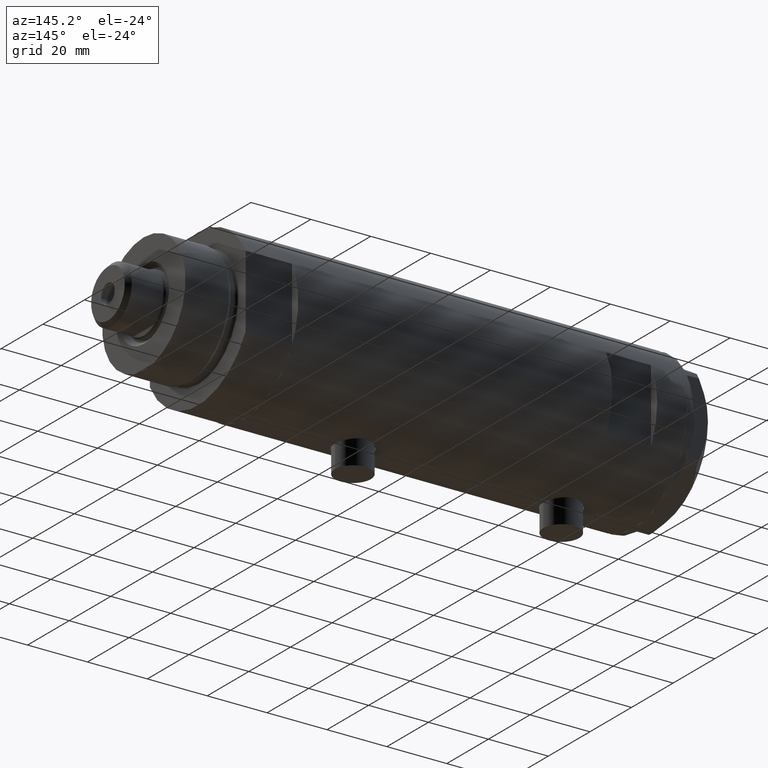
[diagram: clean part render]
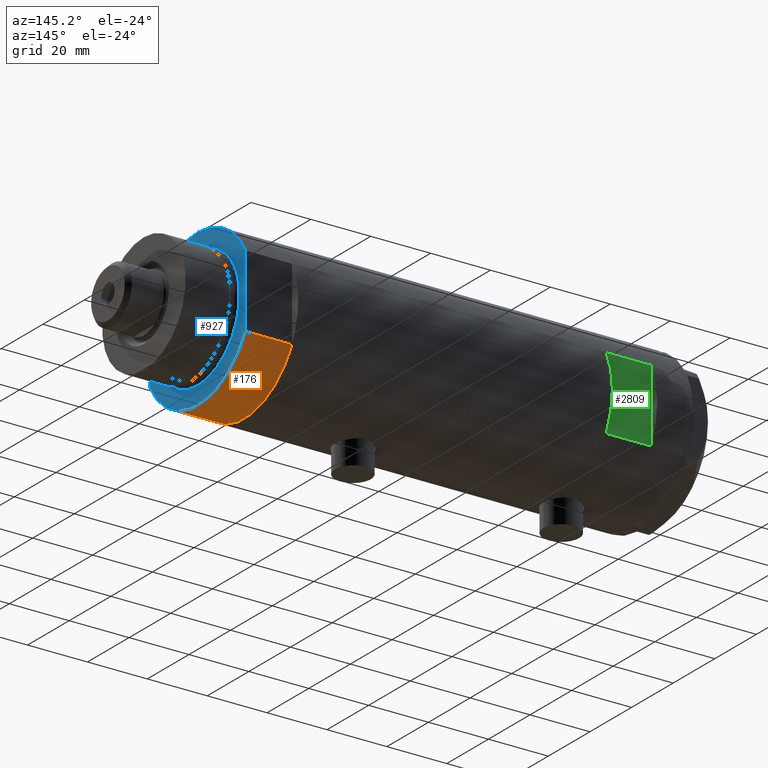
[diagram: same view with three faces highlighted in distinct colors, each labeled with its STEP entity id]
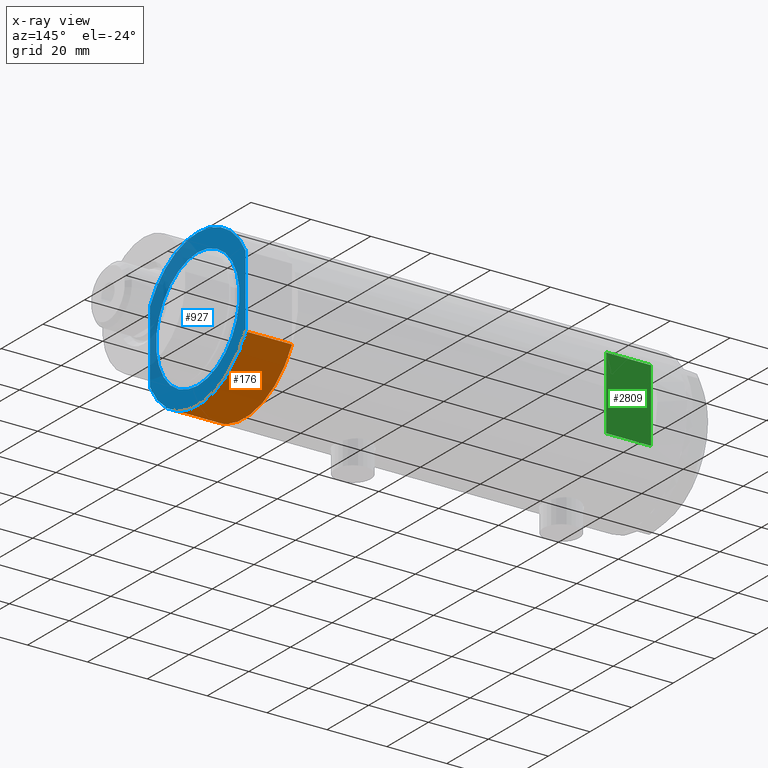
[diagram: x-ray of the same camera — body ghosted, the three highlighted faces saturated]
A machine part, auxiliary view with three faces highlighted in distinct colors.
The next image is the same camera in x-ray (body ghosted, the three faces saturated) — at least one of them is partly hidden behind the body in this view.
Their STEP definitions:

[orange] entity #176 — the highlighted cylindrical surface (partial cylindrical patch) has radius 26 mm, axis along (-1, -0, 0).
#138 = LINE ( 'NONE', #1623, #3081 ) ;
#148 = EDGE_CURVE ( 'NONE', #1057, #4669, #138, .T. ) ;
#162 = DIRECTION ( 'NONE',  ( -0.000000000000000000, -0.000000000000000000, 1.000000000000000000 ) ) ;
#173 = AXIS2_PLACEMENT_3D ( 'NONE', #3785, #3352, #4520 ) ;
#176 = ADVANCED_FACE ( 'NONE', ( #4280 ), #1649, .T. ) ;
#387 = DIRECTION ( 'NONE',  ( -0.000000000000000000, -0.000000000000000000, 1.000000000000000000 ) ) ;
#776 = ORIENTED_EDGE ( 'NONE', *, *, #148, .F. ) ;
#932 = DIRECTION ( 'NONE',  ( -1.000000000000000000, 0.000000000000000000, 0.000000000000000000 ) ) ;
#1053 = EDGE_CURVE ( 'NONE', #1057, #3826, #1677, .T. ) ;
#1057 = VERTEX_POINT ( 'NONE', #1385 ) ;
#1385 = CARTESIAN_POINT ( 'NONE',  ( 12.12435565298215323, -22.99999999999999645, 0.000000000000000000 ) ) ;
#1470 = EDGE_LOOP ( 'NONE', ( #2739, #776, #4200, #2169 ) ) ;
#1623 = CARTESIAN_POINT ( 'NONE',  ( 12.12435565298215323, -22.99999999999999645, 0.000000000000000000 ) ) ;
#1649 = CYLINDRICAL_SURFACE ( 'NONE', #3625, 26.00000000000000355 ) ;
#1677 = CIRCLE ( 'NONE', #4340, 26.00000000000000355 ) ;
#1723 = DIRECTION ( 'NONE',  ( 1.000000000000000000, 0.000000000000000000, 0.000000000000000000 ) ) ;
#2122 = DIRECTION ( 'NONE',  ( 0.000000000000000000, 0.000000000000000000, 1.000000000000000000 ) ) ;
#2131 = CARTESIAN_POINT ( 'NONE',  ( 12.12435565298215323, -22.99999999999999645, 15.50000000000000000 ) ) ;
#2132 = CIRCLE ( 'NONE', #173, 26.00000000000000355 ) ;
#2169 = ORIENTED_EDGE ( 'NONE', *, *, #2994, .T. ) ;
#2724 = CARTESIAN_POINT ( 'NONE',  ( 12.12435565298215323, 23.00000000000000355, 0.000000000000000000 ) ) ;
#2739 = ORIENTED_EDGE ( 'NONE', *, *, #3751, .F. ) ;
#2750 = VECTOR ( 'NONE', #387, 1000.000000000000000 ) ;
#2994 = EDGE_CURVE ( 'NONE', #3826, #4277, #2998, .T. ) ;
#2998 = LINE ( 'NONE', #2724, #2750 ) ;
#3081 = VECTOR ( 'NONE', #162, 1000.000000000000000 ) ;
#3153 = CARTESIAN_POINT ( 'NONE',  ( 0.000000000000000000, 0.000000000000000000, 15.50000000000000000 ) ) ;
#3186 = CARTESIAN_POINT ( 'NONE',  ( 12.12435565298214790, 23.00000000000000355, 15.50000000000000000 ) ) ;
#3198 = CARTESIAN_POINT ( 'NONE',  ( 0.000000000000000000, 0.000000000000000000, 0.000000000000000000 ) ) ;
#3352 = DIRECTION ( 'NONE',  ( 0.000000000000000000, 0.000000000000000000, 1.000000000000000000 ) ) ;
#3416 = CARTESIAN_POINT ( 'NONE',  ( 12.12435565298214080, 23.00000000000000355, 0.000000000000000000 ) ) ;
#3625 = AXIS2_PLACEMENT_3D ( 'NONE', #3153, #4648, #932 ) ;
#3751 = EDGE_CURVE ( 'NONE', #4669, #4277, #2132, .T. ) ;
#3785 = CARTESIAN_POINT ( 'NONE',  ( 0.000000000000000000, 0.000000000000000000, 15.50000000000000000 ) ) ;
#3826 = VERTEX_POINT ( 'NONE', #3416 ) ;
#4200 = ORIENTED_EDGE ( 'NONE', *, *, #1053, .T. ) ;
#4277 = VERTEX_POINT ( 'NONE', #3186 ) ;
#4280 = FACE_OUTER_BOUND ( 'NONE', #1470, .T. ) ;
#4340 = AXIS2_PLACEMENT_3D ( 'NONE', #3198, #2122, #1723 ) ;
#4520 = DIRECTION ( 'NONE',  ( 1.000000000000000000, 0.000000000000000000, 0.000000000000000000 ) ) ;
#4648 = DIRECTION ( 'NONE',  ( -0.000000000000000000, -0.000000000000000000, -1.000000000000000000 ) ) ;
#4669 = VERTEX_POINT ( 'NONE', #2131 ) ;

[blue] entity #927 — the highlighted planar face has unit normal (1, 0, -0).
#56 = CARTESIAN_POINT ( 'NONE',  ( 0.000000000000000000, 0.000000000000000000, 15.50000000000000000 ) ) ;
#125 = DIRECTION ( 'NONE',  ( 0.000000000000000000, 0.000000000000000000, 1.000000000000000000 ) ) ;
#173 = AXIS2_PLACEMENT_3D ( 'NONE', #3785, #3352, #4520 ) ;
#311 = ORIENTED_EDGE ( 'NONE', *, *, #4662, .T. ) ;
#327 = CARTESIAN_POINT ( 'NONE',  ( -12.12435565298215145, -22.99999999999999645, 15.50000000000000000 ) ) ;
#383 = EDGE_CURVE ( 'NONE', #1545, #4185, #3557, .T. ) ;
#580 = LINE ( 'NONE', #327, #2919 ) ;
#590 = CARTESIAN_POINT ( 'NONE',  ( 0.000000000000000000, 0.000000000000000000, 15.50000000000000000 ) ) ;
#651 = CIRCLE ( 'NONE', #3450, 26.00000000000000355 ) ;
#738 = CARTESIAN_POINT ( 'NONE',  ( 20.00000000000000000, 0.000000000000000000, 15.50000000000000000 ) ) ;
#783 = DIRECTION ( 'NONE',  ( 1.000000000000000000, 0.000000000000000000, 0.000000000000000000 ) ) ;
#839 = CARTESIAN_POINT ( 'NONE',  ( -12.12435565298215323, -22.99999999999999645, 15.50000000000000000 ) ) ;
#867 = FACE_OUTER_BOUND ( 'NONE', #4434, .T. ) ;
#918 = DIRECTION ( 'NONE',  ( -0.000000000000000000, -0.000000000000000000, -1.000000000000000000 ) ) ;
#927 = ADVANCED_FACE ( 'NONE', ( #3069, #867 ), #3850, .T. ) ;
#1023 = DIRECTION ( 'NONE',  ( 1.000000000000000000, 0.000000000000000000, 0.000000000000000000 ) ) ;
#1097 = VERTEX_POINT ( 'NONE', #4033 ) ;
#1111 = CIRCLE ( 'NONE', #2681, 26.00000000000000355 ) ;
#1134 = AXIS2_PLACEMENT_3D ( 'NONE', #2728, #125, #4608 ) ;
#1340 = DIRECTION ( 'NONE',  ( 0.000000000000000000, 0.000000000000000000, 1.000000000000000000 ) ) ;
#1368 = DIRECTION ( 'NONE',  ( 1.000000000000000000, 0.000000000000000000, 0.000000000000000000 ) ) ;
#1452 = DIRECTION ( 'NONE',  ( -1.000000000000000000, -0.000000000000000000, -0.000000000000000000 ) ) ;
#1454 = ORIENTED_EDGE ( 'NONE', *, *, #4208, .F. ) ;
#1545 = VERTEX_POINT ( 'NONE', #738 ) ;
#1670 = AXIS2_PLACEMENT_3D ( 'NONE', #56, #4477, #783 ) ;
#1814 = VECTOR ( 'NONE', #1368, 1000.000000000000000 ) ;
#1898 = AXIS2_PLACEMENT_3D ( 'NONE', #3986, #918, #3204 ) ;
#2131 = CARTESIAN_POINT ( 'NONE',  ( 12.12435565298215323, -22.99999999999999645, 15.50000000000000000 ) ) ;
#2132 = CIRCLE ( 'NONE', #173, 26.00000000000000355 ) ;
#2409 = VERTEX_POINT ( 'NONE', #2496 ) ;
#2449 = EDGE_CURVE ( 'NONE', #1097, #2409, #651, .T. ) ;
#2496 = CARTESIAN_POINT ( 'NONE',  ( -26.00000000000000355, 0.000000000000000000, 15.50000000000000000 ) ) ;
#2681 = AXIS2_PLACEMENT_3D ( 'NONE', #4751, #4376, #1023 ) ;
#2728 = CARTESIAN_POINT ( 'NONE',  ( 0.000000000000000000, 0.000000000000000000, 15.50000000000000000 ) ) ;
#2872 = ORIENTED_EDGE ( 'NONE', *, *, #3712, .T. ) ;
#2919 = VECTOR ( 'NONE', #1452, 1000.000000000000000 ) ;
#3056 = VERTEX_POINT ( 'NONE', #839 ) ;
#3069 = FACE_BOUND ( 'NONE', #4685, .T. ) ;
#3186 = CARTESIAN_POINT ( 'NONE',  ( 12.12435565298214790, 23.00000000000000355, 15.50000000000000000 ) ) ;
#3204 = DIRECTION ( 'NONE',  ( 1.000000000000000000, 0.000000000000000000, 0.000000000000000000 ) ) ;
#3352 = DIRECTION ( 'NONE',  ( 0.000000000000000000, 0.000000000000000000, 1.000000000000000000 ) ) ;
#3450 = AXIS2_PLACEMENT_3D ( 'NONE', #590, #1340, #4330 ) ;
#3513 = ORIENTED_EDGE ( 'NONE', *, *, #383, .T. ) ;
#3550 = ORIENTED_EDGE ( 'NONE', *, *, #3559, .F. ) ;
#3557 = CIRCLE ( 'NONE', #1670, 20.00000000000000000 ) ;
#3559 = EDGE_CURVE ( 'NONE', #1097, #4277, #4199, .T. ) ;
#3712 = EDGE_CURVE ( 'NONE', #2409, #3056, #1111, .T. ) ;
#3751 = EDGE_CURVE ( 'NONE', #4669, #4277, #2132, .T. ) ;
#3785 = CARTESIAN_POINT ( 'NONE',  ( 0.000000000000000000, 0.000000000000000000, 15.50000000000000000 ) ) ;
#3850 = PLANE ( 'NONE',  #1134 ) ;
#3986 = CARTESIAN_POINT ( 'NONE',  ( 0.000000000000000000, 0.000000000000000000, 15.50000000000000000 ) ) ;
#4017 = ORIENTED_EDGE ( 'NONE', *, *, #2449, .T. ) ;
#4029 = CARTESIAN_POINT ( 'NONE',  ( -20.00000000000000000, 2.449293598294706513E-15, 15.50000000000000000 ) ) ;
#4033 = CARTESIAN_POINT ( 'NONE',  ( -12.12435565298214613, 23.00000000000000355, 15.50000000000000000 ) ) ;
#4037 = CARTESIAN_POINT ( 'NONE',  ( -12.12435565298215145, 23.00000000000000355, 15.50000000000000000 ) ) ;
#4185 = VERTEX_POINT ( 'NONE', #4029 ) ;
#4199 = LINE ( 'NONE', #4037, #1814 ) ;
#4208 = EDGE_CURVE ( 'NONE', #4669, #3056, #580, .T. ) ;
#4277 = VERTEX_POINT ( 'NONE', #3186 ) ;
#4330 = DIRECTION ( 'NONE',  ( 1.000000000000000000, 0.000000000000000000, 0.000000000000000000 ) ) ;
#4356 = ORIENTED_EDGE ( 'NONE', *, *, #3751, .T. ) ;
#4376 = DIRECTION ( 'NONE',  ( 0.000000000000000000, 0.000000000000000000, 1.000000000000000000 ) ) ;
#4434 = EDGE_LOOP ( 'NONE', ( #1454, #4356, #3550, #4017, #2872 ) ) ;
#4477 = DIRECTION ( 'NONE',  ( -0.000000000000000000, -0.000000000000000000, -1.000000000000000000 ) ) ;
#4520 = DIRECTION ( 'NONE',  ( 1.000000000000000000, 0.000000000000000000, 0.000000000000000000 ) ) ;
#4608 = DIRECTION ( 'NONE',  ( 1.000000000000000000, 0.000000000000000000, -0.000000000000000000 ) ) ;
#4662 = EDGE_CURVE ( 'NONE', #4185, #1545, #4712, .T. ) ;
#4669 = VERTEX_POINT ( 'NONE', #2131 ) ;
#4685 = EDGE_LOOP ( 'NONE', ( #3513, #311 ) ) ;
#4712 = CIRCLE ( 'NONE', #1898, 20.00000000000000000 ) ;
#4751 = CARTESIAN_POINT ( 'NONE',  ( 0.000000000000000000, 0.000000000000000000, 15.50000000000000000 ) ) ;

[green] entity #2809 — the highlighted planar face has unit normal (0, -1, -0).
#562 = EDGE_CURVE ( 'NONE', #4598, #3832, #2804, .T. ) ;
#623 = DIRECTION ( 'NONE',  ( 1.000000000000000000, -0.000000000000000000, -0.000000000000000000 ) ) ;
#727 = PLANE ( 'NONE',  #797 ) ;
#735 = VECTOR ( 'NONE', #2156, 1000.000000000000000 ) ;
#797 = AXIS2_PLACEMENT_3D ( 'NONE', #2236, #4786, #4814 ) ;
#1038 = ORIENTED_EDGE ( 'NONE', *, *, #562, .T. ) ;
#1055 = CARTESIAN_POINT ( 'NONE',  ( 12.12435565298213724, 23.00000000000000355, 39.95000000000000284 ) ) ;
#1323 = CARTESIAN_POINT ( 'NONE',  ( -12.12435565298214080, 23.00000000000000355, 39.95000000000000284 ) ) ;
#1441 = CARTESIAN_POINT ( 'NONE',  ( -26.00000000000000355, 23.00000000000000355, 39.95000000000000284 ) ) ;
#1537 = ORIENTED_EDGE ( 'NONE', *, *, #2331, .T. ) ;
#1636 = CARTESIAN_POINT ( 'NONE',  ( -26.00000000000000355, 23.00000000000000355, 54.94999999999999574 ) ) ;
#1784 = LINE ( 'NONE', #1441, #4806 ) ;
#1996 = ORIENTED_EDGE ( 'NONE', *, *, #4761, .F. ) ;
#2156 = DIRECTION ( 'NONE',  ( -0.000000000000000000, -0.000000000000000000, -1.000000000000000000 ) ) ;
#2236 = CARTESIAN_POINT ( 'NONE',  ( -26.00000000000000355, 23.00000000000000355, 54.94999999999999574 ) ) ;
#2268 = CARTESIAN_POINT ( 'NONE',  ( -12.12435565298214080, 23.00000000000000355, 54.94999999999999574 ) ) ;
#2303 = VECTOR ( 'NONE', #3147, 1000.000000000000000 ) ;
#2331 = EDGE_CURVE ( 'NONE', #4364, #3644, #4803, .T. ) ;
#2545 = ORIENTED_EDGE ( 'NONE', *, *, #2670, .T. ) ;
#2604 = VECTOR ( 'NONE', #623, 1000.000000000000000 ) ;
#2612 = FACE_OUTER_BOUND ( 'NONE', #2763, .T. ) ;
#2670 = EDGE_CURVE ( 'NONE', #3832, #4364, #3512, .T. ) ;
#2763 = EDGE_LOOP ( 'NONE', ( #1537, #1996, #1038, #2545 ) ) ;
#2804 = LINE ( 'NONE', #4293, #2303 ) ;
#2809 = ADVANCED_FACE ( 'NONE', ( #2612 ), #727, .F. ) ;
#2921 = CARTESIAN_POINT ( 'NONE',  ( 12.12435565298214080, 23.00000000000000355, 54.94999999999999574 ) ) ;
#3147 = DIRECTION ( 'NONE',  ( 0.000000000000000000, 0.000000000000000000, 1.000000000000000000 ) ) ;
#3512 = LINE ( 'NONE', #1636, #2604 ) ;
#3644 = VERTEX_POINT ( 'NONE', #1055 ) ;
#3740 = DIRECTION ( 'NONE',  ( 1.000000000000000000, -0.000000000000000000, -0.000000000000000000 ) ) ;
#3832 = VERTEX_POINT ( 'NONE', #2268 ) ;
#3982 = CARTESIAN_POINT ( 'NONE',  ( 12.12435565298214080, 23.00000000000000355, -64.95000000000000284 ) ) ;
#4293 = CARTESIAN_POINT ( 'NONE',  ( -12.12435565298214080, 23.00000000000000355, -64.95000000000000284 ) ) ;
#4364 = VERTEX_POINT ( 'NONE', #2921 ) ;
#4598 = VERTEX_POINT ( 'NONE', #1323 ) ;
#4761 = EDGE_CURVE ( 'NONE', #4598, #3644, #1784, .T. ) ;
#4786 = DIRECTION ( 'NONE',  ( 0.000000000000000000, -1.000000000000000000, -0.000000000000000000 ) ) ;
#4803 = LINE ( 'NONE', #3982, #735 ) ;
#4806 = VECTOR ( 'NONE', #3740, 1000.000000000000000 ) ;
#4814 = DIRECTION ( 'NONE',  ( 0.000000000000000000, 0.000000000000000000, -1.000000000000000000 ) ) ;